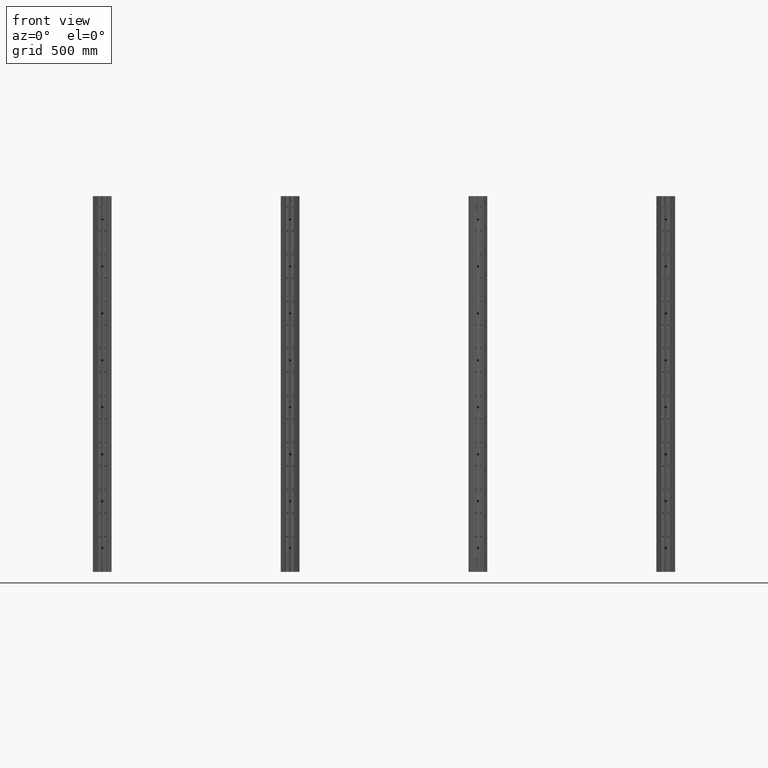
[diagram: clean part render]
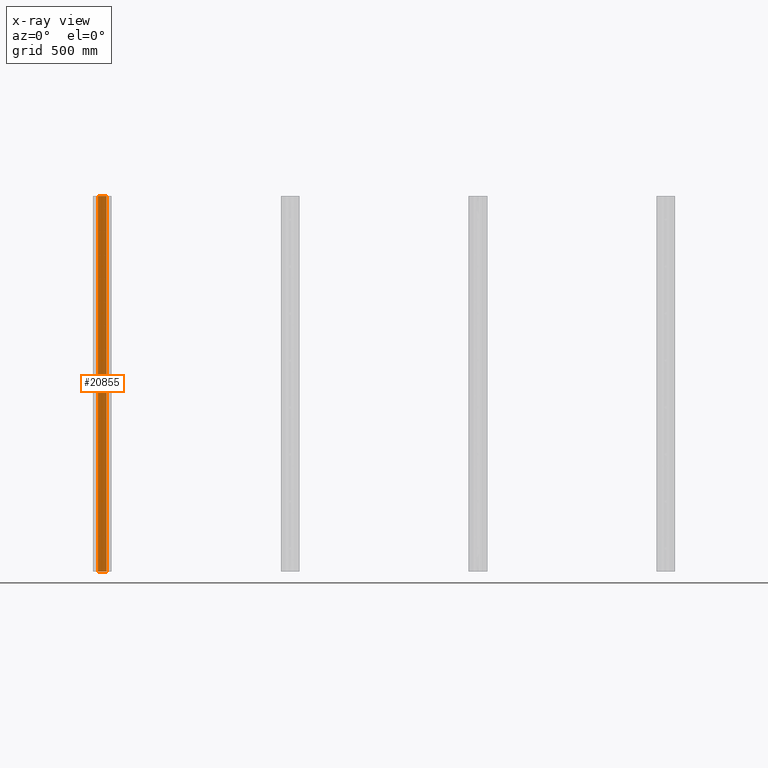
[diagram: x-ray — body ghosted, one internal face saturated and labeled with its STEP entity id]
A machine part, front view, then the same camera in x-ray: the body is ghosted and one INTERNAL B-rep face — a face not visible from any outside direction — is saturated and labeled: STEP entity #20855.
In plain terms, the highlighted planar face has unit normal (-0, -1, 0).
Its self-contained STEP definition (entity closure, byte-faithful):
#881=PLANE('',#23277);
#2988=FACE_OUTER_BOUND('',#4089,.T.);
#4089=EDGE_LOOP('',(#19335,#19336,#19337,#19338));
#5586=LINE('',#38434,#7125);
#5587=LINE('',#38437,#7126);
#5588=LINE('',#38439,#7127);
#5589=LINE('',#38440,#7128);
#7125=VECTOR('',#29387,10.);
#7126=VECTOR('',#29390,10.);
#7127=VECTOR('',#29391,10.);
#7128=VECTOR('',#29392,10.);
#10184=VERTEX_POINT('',#38430);
#10185=VERTEX_POINT('',#38432);
#10186=VERTEX_POINT('',#38436);
#10187=VERTEX_POINT('',#38438);
#13270=EDGE_CURVE('',#10184,#10185,#5586,.T.);
#13271=EDGE_CURVE('',#10186,#10184,#5587,.T.);
#13272=EDGE_CURVE('',#10187,#10185,#5588,.T.);
#13273=EDGE_CURVE('',#10186,#10187,#5589,.T.);
#19335=ORIENTED_EDGE('',*,*,#13271,.T.);
#19336=ORIENTED_EDGE('',*,*,#13270,.T.);
#19337=ORIENTED_EDGE('',*,*,#13272,.F.);
#19338=ORIENTED_EDGE('',*,*,#13273,.F.);
#20855=ADVANCED_FACE('',(#2988),#881,.T.);
#23277=AXIS2_PLACEMENT_3D('',#38435,#29388,#29389);
#29387=DIRECTION('',(0.,0.,1.));
#29388=DIRECTION('center_axis',(0.,-1.,0.));
#29389=DIRECTION('ref_axis',(1.,0.,0.));
#29390=DIRECTION('',(1.,0.,0.));
#29391=DIRECTION('',(1.,0.,0.));
#29392=DIRECTION('',(0.,0.,1.));
#38430=CARTESIAN_POINT('',(48.8052765834764,10.6101106696378,0.));
#38432=CARTESIAN_POINT('',(48.8052765834764,10.6101106696378,2000.));
#38434=CARTESIAN_POINT('',(48.8052765834764,10.6101106696378,0.));
#38435=CARTESIAN_POINT('Origin',(2.20527658347692,10.6101106696378,0.));
#38436=CARTESIAN_POINT('',(2.20527658347692,10.6101106696378,0.));
#38437=CARTESIAN_POINT('',(2.20527658347692,10.6101106696378,0.));
#38438=CARTESIAN_POINT('',(2.20527658347692,10.6101106696378,2000.));
#38439=CARTESIAN_POINT('',(2.20527658347692,10.6101106696378,2000.));
#38440=CARTESIAN_POINT('',(2.20527658347692,10.6101106696378,0.));